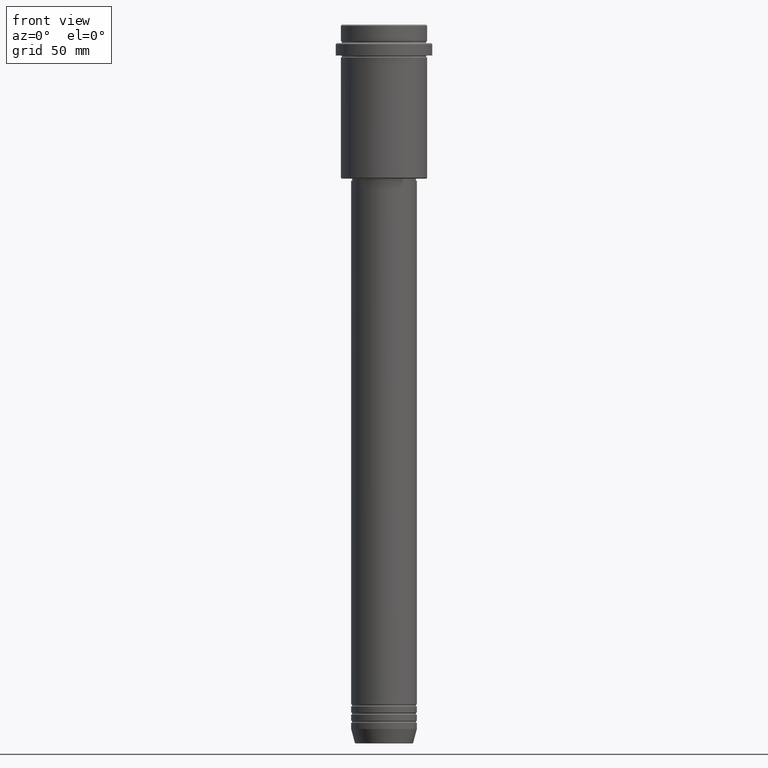
[diagram: clean part render]
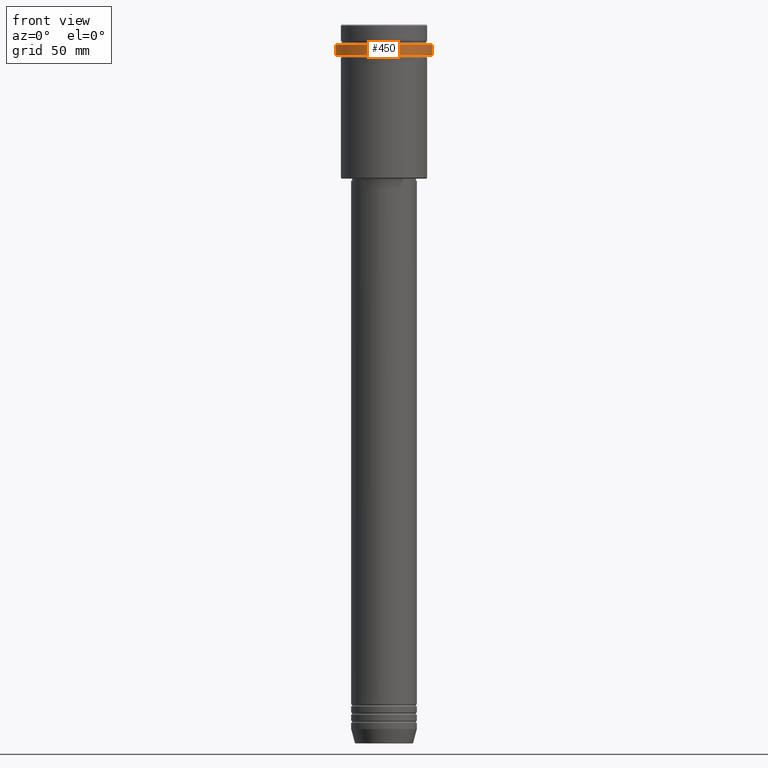
[diagram: same view with one face highlighted and labeled with its STEP entity id]
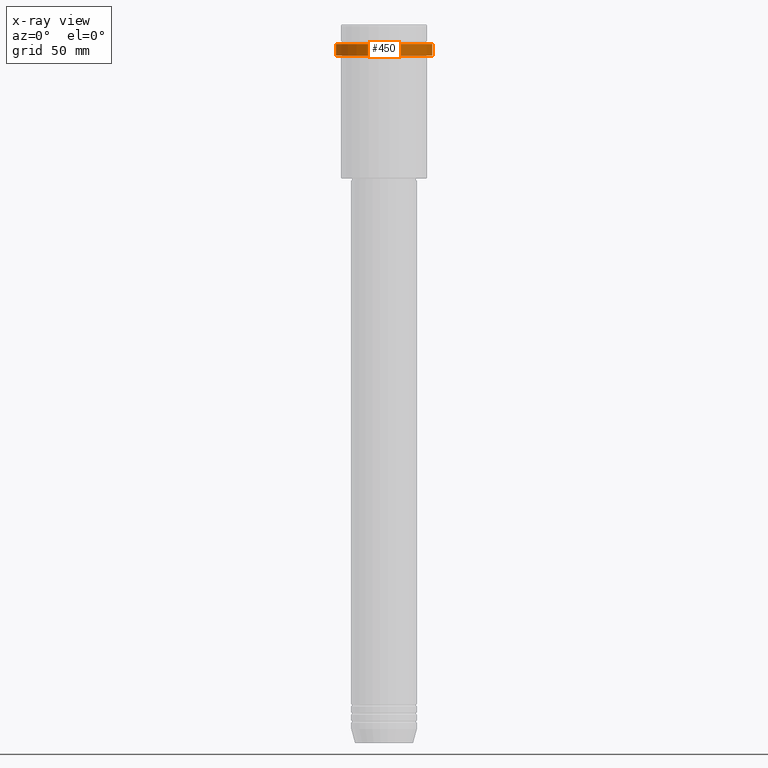
[diagram: x-ray of the same camera — body ghosted, the highlighted face saturated]
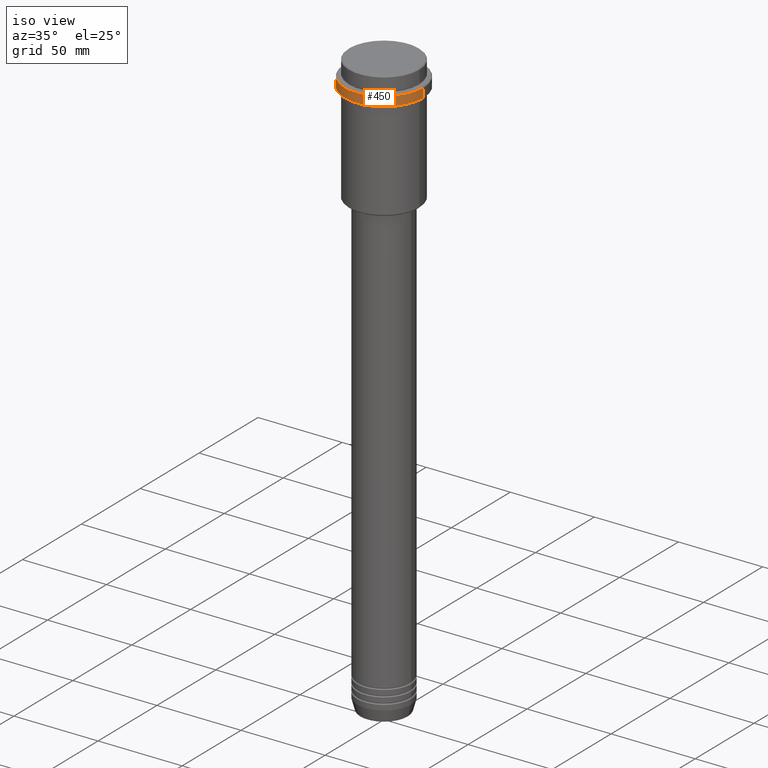
[diagram: same view with one face highlighted and labeled with its STEP entity id]
A machine part, front view. The second image highlights one B-rep face of the part: STEP entity #450.
The next image is the same camera in x-ray: the body ghosted, the highlighted face saturated — about 0% of this face is hidden behind the body in this view.
A second angle (iso view) of the same face is appended — the face is thin or edge-on in the first view.
In plain terms, the highlighted cylindrical surface (partial cylindrical patch) has radius 23.5 mm, axis along (-0, -0, 1).
Its self-contained STEP definition (entity closure, byte-faithful):
#56 = CARTESIAN_POINT ( 'NONE',  ( 0.000000000000000000, 0.000000000000000000, -15.00000000000000178 ) ) ;
#61 = EDGE_CURVE ( 'NONE', #1310, #97, #337, .T. ) ;
#67 = AXIS2_PLACEMENT_3D ( 'NONE', #975, #175, #1063 ) ;
#97 = VERTEX_POINT ( 'NONE', #745 ) ;
#116 = DIRECTION ( 'NONE',  ( -0.000000000000000000, -0.000000000000000000, 1.000000000000000000 ) ) ;
#175 = DIRECTION ( 'NONE',  ( 0.000000000000000000, 0.000000000000000000, -1.000000000000000000 ) ) ;
#242 = EDGE_LOOP ( 'NONE', ( #1279, #1305, #804, #1069 ) ) ;
#253 = CARTESIAN_POINT ( 'NONE',  ( -23.50000000000000711, 2.877919977996281109E-15, -15.00000000000000178 ) ) ;
#263 = CIRCLE ( 'NONE', #594, 23.50000000000000355 ) ;
#275 = VERTEX_POINT ( 'NONE', #444 ) ;
#286 = VECTOR ( 'NONE', #1066, 1000.000000000000000 ) ;
#337 = CIRCLE ( 'NONE', #67, 23.50000000000000000 ) ;
#358 = EDGE_CURVE ( 'NONE', #452, #97, #1112, .T. ) ;
#364 = AXIS2_PLACEMENT_3D ( 'NONE', #1057, #841, #1356 ) ;
#444 = CARTESIAN_POINT ( 'NONE',  ( 23.50000000000000355, 0.000000000000000000, -15.00000000000000178 ) ) ;
#450 = ADVANCED_FACE ( 'NONE', ( #484 ), #928, .T. ) ;
#452 = VERTEX_POINT ( 'NONE', #253 ) ;
#484 = FACE_OUTER_BOUND ( 'NONE', #242, .T. ) ;
#493 = DIRECTION ( 'NONE',  ( 1.000000000000000000, 0.000000000000000000, 0.000000000000000000 ) ) ;
#507 = LINE ( 'NONE', #627, #286 ) ;
#594 = AXIS2_PLACEMENT_3D ( 'NONE', #56, #599, #493 ) ;
#599 = DIRECTION ( 'NONE',  ( -0.000000000000000000, -0.000000000000000000, 1.000000000000000000 ) ) ;
#627 = CARTESIAN_POINT ( 'NONE',  ( 23.50000000000000000, 0.000000000000000000, 0.000000000000000000 ) ) ;
#649 = EDGE_CURVE ( 'NONE', #275, #1310, #507, .T. ) ;
#673 = CARTESIAN_POINT ( 'NONE',  ( -23.50000000000000000, 2.877919977996280320E-15, 0.000000000000000000 ) ) ;
#745 = CARTESIAN_POINT ( 'NONE',  ( -23.50000000000000000, 2.877919977996280320E-15, -9.500000000000001776 ) ) ;
#804 = ORIENTED_EDGE ( 'NONE', *, *, #649, .T. ) ;
#841 = DIRECTION ( 'NONE',  ( -0.000000000000000000, -0.000000000000000000, 1.000000000000000000 ) ) ;
#928 = CYLINDRICAL_SURFACE ( 'NONE', #364, 23.50000000000000000 ) ;
#961 = EDGE_CURVE ( 'NONE', #452, #275, #263, .T. ) ;
#975 = CARTESIAN_POINT ( 'NONE',  ( 0.000000000000000000, 0.000000000000000000, -9.500000000000001776 ) ) ;
#1057 = CARTESIAN_POINT ( 'NONE',  ( 0.000000000000000000, 0.000000000000000000, 0.000000000000000000 ) ) ;
#1063 = DIRECTION ( 'NONE',  ( 1.000000000000000000, 0.000000000000000000, 0.000000000000000000 ) ) ;
#1066 = DIRECTION ( 'NONE',  ( -0.000000000000000000, -0.000000000000000000, 1.000000000000000000 ) ) ;
#1069 = ORIENTED_EDGE ( 'NONE', *, *, #61, .T. ) ;
#1112 = LINE ( 'NONE', #673, #1349 ) ;
#1206 = CARTESIAN_POINT ( 'NONE',  ( 23.50000000000000000, 0.000000000000000000, -9.500000000000001776 ) ) ;
#1279 = ORIENTED_EDGE ( 'NONE', *, *, #358, .F. ) ;
#1305 = ORIENTED_EDGE ( 'NONE', *, *, #961, .T. ) ;
#1310 = VERTEX_POINT ( 'NONE', #1206 ) ;
#1349 = VECTOR ( 'NONE', #116, 1000.000000000000000 ) ;
#1356 = DIRECTION ( 'NONE',  ( 1.000000000000000000, 0.000000000000000000, 0.000000000000000000 ) ) ;